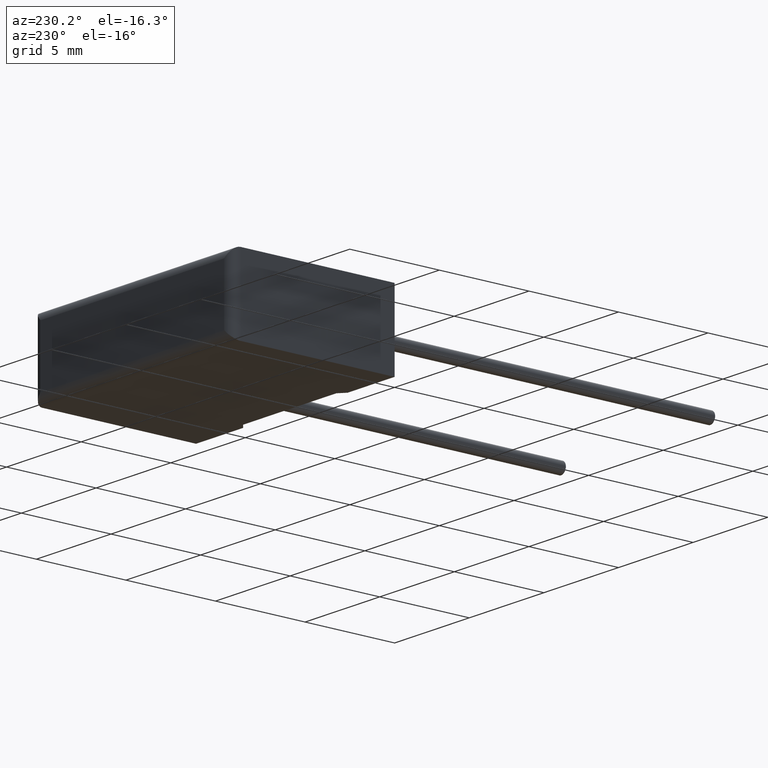
[diagram: clean part render]
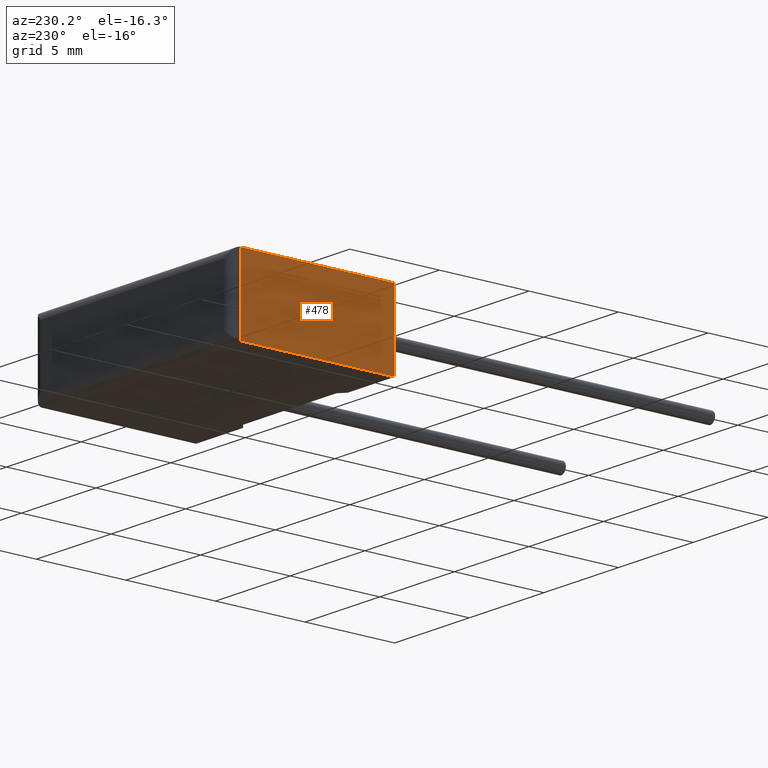
[diagram: same view with one face highlighted and labeled with its STEP entity id]
A machine part, auxiliary view. The second image highlights one B-rep face of the part: STEP entity #478.
In plain terms, the highlighted planar face has unit normal (1, 0, 0).
Its self-contained STEP definition (entity closure, byte-faithful):
#122 = EDGE_CURVE ( 'NONE', #2421, #1275, #508, .T. ) ;
#164 = DIRECTION ( 'NONE',  ( -0.000000000000000000, -1.000000000000000000, -0.000000000000000000 ) ) ;
#203 = VECTOR ( 'NONE', #2417, 1000.000000000000000 ) ;
#379 = ORIENTED_EDGE ( 'NONE', *, *, #2942, .T. ) ;
#478 = ADVANCED_FACE ( 'NONE', ( #1436 ), #2634, .F. ) ;
#508 = LINE ( 'NONE', #971, #1038 ) ;
#782 = CARTESIAN_POINT ( 'NONE',  ( 0.000000000000000000, 8.599999999999999645, 4.200000000000000178 ) ) ;
#894 = CARTESIAN_POINT ( 'NONE',  ( 0.000000000000000000, 0.000000000000000000, 4.200000000000000178 ) ) ;
#971 = CARTESIAN_POINT ( 'NONE',  ( 0.000000000000000000, 0.000000000000000000, 4.200000000000000178 ) ) ;
#1038 = VECTOR ( 'NONE', #2160, 1000.000000000000000 ) ;
#1064 = ORIENTED_EDGE ( 'NONE', *, *, #1263, .F. ) ;
#1106 = DIRECTION ( 'NONE',  ( -0.000000000000000000, -1.000000000000000000, -0.000000000000000000 ) ) ;
#1204 = CARTESIAN_POINT ( 'NONE',  ( 0.000000000000000000, 0.000000000000000000, 4.200000000000000178 ) ) ;
#1220 = DIRECTION ( 'NONE',  ( 0.000000000000000000, 0.000000000000000000, -1.000000000000000000 ) ) ;
#1263 = EDGE_CURVE ( 'NONE', #1572, #2421, #1838, .T. ) ;
#1275 = VERTEX_POINT ( 'NONE', #2992 ) ;
#1287 = CARTESIAN_POINT ( 'NONE',  ( 0.000000000000000000, 0.000000000000000000, 0.000000000000000000 ) ) ;
#1436 = FACE_OUTER_BOUND ( 'NONE', #2185, .T. ) ;
#1470 = CARTESIAN_POINT ( 'NONE',  ( 0.000000000000000000, 8.599999999999999645, 0.000000000000000000 ) ) ;
#1572 = VERTEX_POINT ( 'NONE', #782 ) ;
#1719 = CARTESIAN_POINT ( 'NONE',  ( 0.000000000000000000, 8.599999999999999645, 4.200000000000000178 ) ) ;
#1814 = AXIS2_PLACEMENT_3D ( 'NONE', #1204, #1904, #1220 ) ;
#1838 = LINE ( 'NONE', #894, #2868 ) ;
#1904 = DIRECTION ( 'NONE',  ( 1.000000000000000000, 0.000000000000000000, 0.000000000000000000 ) ) ;
#1963 = VERTEX_POINT ( 'NONE', #1470 ) ;
#1983 = EDGE_CURVE ( 'NONE', #1572, #1963, #2151, .T. ) ;
#2151 = LINE ( 'NONE', #1719, #203 ) ;
#2160 = DIRECTION ( 'NONE',  ( -0.000000000000000000, -0.000000000000000000, -1.000000000000000000 ) ) ;
#2185 = EDGE_LOOP ( 'NONE', ( #1064, #2510, #379, #2729 ) ) ;
#2248 = LINE ( 'NONE', #1287, #2731 ) ;
#2417 = DIRECTION ( 'NONE',  ( 0.000000000000000000, 0.000000000000000000, -1.000000000000000000 ) ) ;
#2421 = VERTEX_POINT ( 'NONE', #2697 ) ;
#2510 = ORIENTED_EDGE ( 'NONE', *, *, #1983, .T. ) ;
#2634 = PLANE ( 'NONE',  #1814 ) ;
#2697 = CARTESIAN_POINT ( 'NONE',  ( 0.000000000000000000, 0.000000000000000000, 4.200000000000000178 ) ) ;
#2729 = ORIENTED_EDGE ( 'NONE', *, *, #122, .F. ) ;
#2731 = VECTOR ( 'NONE', #1106, 1000.000000000000000 ) ;
#2868 = VECTOR ( 'NONE', #164, 1000.000000000000000 ) ;
#2942 = EDGE_CURVE ( 'NONE', #1963, #1275, #2248, .T. ) ;
#2992 = CARTESIAN_POINT ( 'NONE',  ( 0.000000000000000000, 0.000000000000000000, 0.000000000000000000 ) ) ;